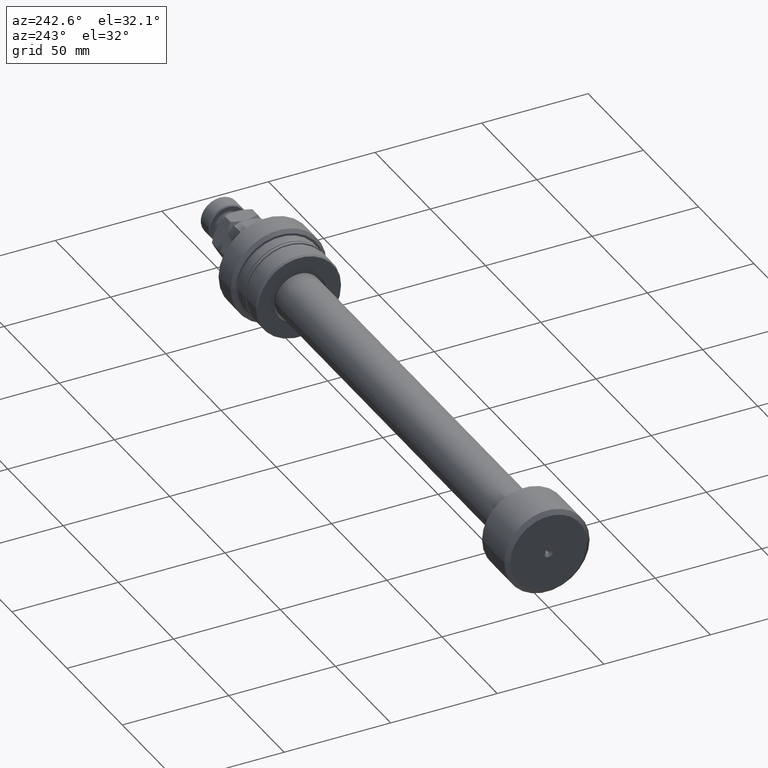
[diagram: clean part render]
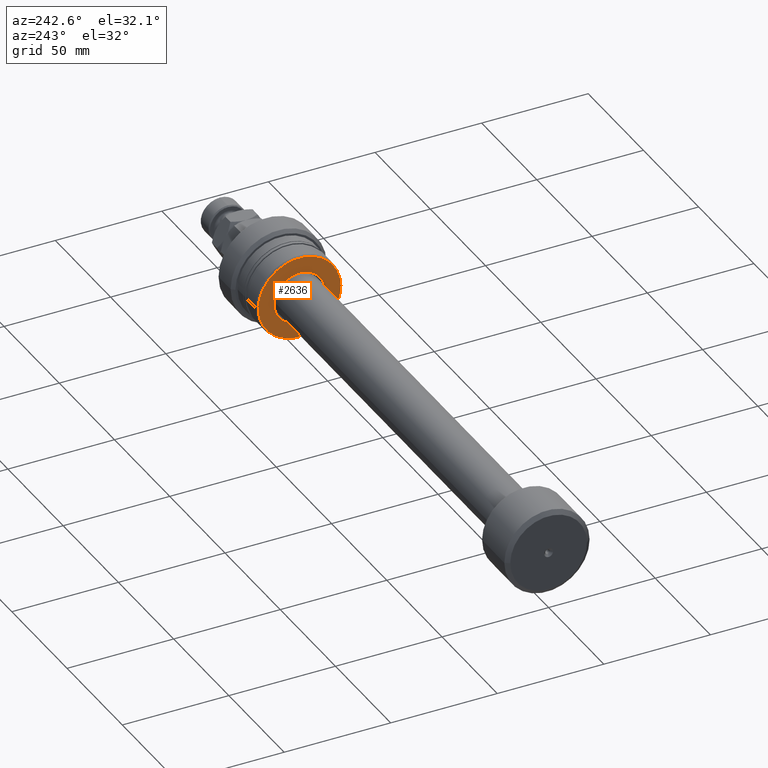
[diagram: same view with one face highlighted and labeled with its STEP entity id]
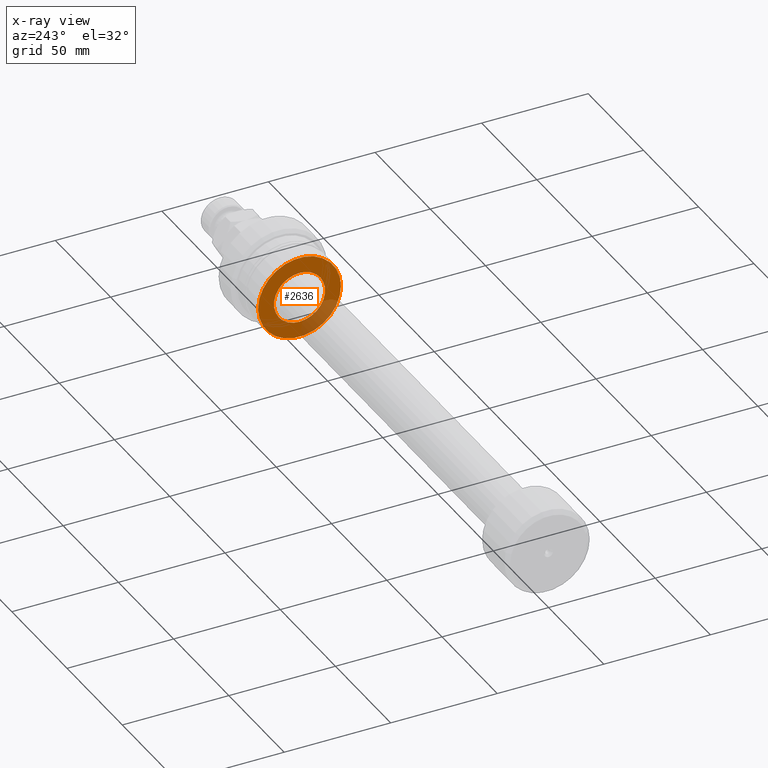
[diagram: x-ray of the same camera — body ghosted, the highlighted face saturated]
A machine part, auxiliary view. The second image highlights one B-rep face of the part: STEP entity #2636.
The next image is the same camera in x-ray: the body ghosted, the highlighted face saturated — about 18% of this face is hidden behind the body in this view.
In plain terms, the highlighted planar face has unit normal (1, 0, 0).
Its self-contained STEP definition (entity closure, byte-faithful):
#52 = ORIENTED_EDGE ( 'NONE', *, *, #2609, .F. ) ;
#162 = FACE_BOUND ( 'NONE', #677, .T. ) ;
#442 = AXIS2_PLACEMENT_3D ( 'NONE', #663, #646, #1986 ) ;
#531 = EDGE_LOOP ( 'NONE', ( #52, #917 ) ) ;
#646 = DIRECTION ( 'NONE',  ( 1.000000000000000000, 3.039592211588219332E-15, -0.000000000000000000 ) ) ;
#663 = CARTESIAN_POINT ( 'NONE',  ( -31.50000000000002842, 0.000000000000000000, 0.000000000000000000 ) ) ;
#677 = EDGE_LOOP ( 'NONE', ( #1540, #4001 ) ) ;
#702 = AXIS2_PLACEMENT_3D ( 'NONE', #2912, #1994, #3272 ) ;
#786 = FACE_OUTER_BOUND ( 'NONE', #531, .T. ) ;
#819 = EDGE_CURVE ( 'NONE', #3399, #4081, #1765, .T. ) ;
#886 = CARTESIAN_POINT ( 'NONE',  ( -31.50000000000011724, 19.42264973081046620, 0.000000000000000000 ) ) ;
#917 = ORIENTED_EDGE ( 'NONE', *, *, #3283, .F. ) ;
#1103 = CIRCLE ( 'NONE', #442, 12.00000000000004974 ) ;
#1220 = CARTESIAN_POINT ( 'NONE',  ( -31.50000000000002842, 1.469576158976825525E-15, -12.00000000000001421 ) ) ;
#1303 = AXIS2_PLACEMENT_3D ( 'NONE', #2085, #2352, #2714 ) ;
#1346 = CARTESIAN_POINT ( 'NONE',  ( -31.49999999999999289, -19.42264973081047330, 2.413941090337215294E-15 ) ) ;
#1540 = ORIENTED_EDGE ( 'NONE', *, *, #819, .T. ) ;
#1569 = VERTEX_POINT ( 'NONE', #886 ) ;
#1617 = CARTESIAN_POINT ( 'NONE',  ( -31.50000000000002842, 0.000000000000000000, 0.000000000000000000 ) ) ;
#1663 = DIRECTION ( 'NONE',  ( -2.891205793294666395E-15, 1.000000000000000000, 0.000000000000000000 ) ) ;
#1765 = CIRCLE ( 'NONE', #2027, 12.00000000000004974 ) ;
#1880 = DIRECTION ( 'NONE',  ( -3.215320566487873166E-15, 1.000000000000000000, 0.000000000000000000 ) ) ;
#1900 = CARTESIAN_POINT ( 'NONE',  ( -31.50000000000005684, -3.708233295962832451E-15, 0.000000000000000000 ) ) ;
#1986 = DIRECTION ( 'NONE',  ( -2.891205793294666395E-15, 1.000000000000000000, 0.000000000000000000 ) ) ;
#1994 = DIRECTION ( 'NONE',  ( 1.000000000000000000, 3.039592211588219332E-15, -0.000000000000000000 ) ) ;
#2007 = VERTEX_POINT ( 'NONE', #1346 ) ;
#2027 = AXIS2_PLACEMENT_3D ( 'NONE', #1617, #2299, #1663 ) ;
#2085 = CARTESIAN_POINT ( 'NONE',  ( -31.50000000000002842, -3.708233295962742521E-15, 0.000000000000000000 ) ) ;
#2155 = CIRCLE ( 'NONE', #3935, 19.42264973081046975 ) ;
#2219 = DIRECTION ( 'NONE',  ( 1.000000000000000000, 3.039592211588219332E-15, -0.000000000000000000 ) ) ;
#2299 = DIRECTION ( 'NONE',  ( 1.000000000000000000, 3.039592211588219332E-15, -0.000000000000000000 ) ) ;
#2352 = DIRECTION ( 'NONE',  ( 1.000000000000000000, 3.039592211588219332E-15, -0.000000000000000000 ) ) ;
#2566 = CARTESIAN_POINT ( 'NONE',  ( -31.50000000000002842, 0.000000000000000000, 12.00000000000001421 ) ) ;
#2609 = EDGE_CURVE ( 'NONE', #1569, #2007, #3218, .T. ) ;
#2636 = ADVANCED_FACE ( 'NONE', ( #162, #786 ), #3077, .F. ) ;
#2714 = DIRECTION ( 'NONE',  ( -3.039592211588219332E-15, 1.000000000000000000, 0.000000000000000000 ) ) ;
#2912 = CARTESIAN_POINT ( 'NONE',  ( -31.50000000000005684, -3.708233295962832451E-15, 0.000000000000000000 ) ) ;
#3077 = PLANE ( 'NONE',  #1303 ) ;
#3218 = CIRCLE ( 'NONE', #702, 19.42264973081046975 ) ;
#3272 = DIRECTION ( 'NONE',  ( -3.215320566487873166E-15, 1.000000000000000000, 0.000000000000000000 ) ) ;
#3283 = EDGE_CURVE ( 'NONE', #2007, #1569, #2155, .T. ) ;
#3392 = EDGE_CURVE ( 'NONE', #4081, #3399, #1103, .T. ) ;
#3399 = VERTEX_POINT ( 'NONE', #2566 ) ;
#3935 = AXIS2_PLACEMENT_3D ( 'NONE', #1900, #2219, #1880 ) ;
#4001 = ORIENTED_EDGE ( 'NONE', *, *, #3392, .T. ) ;
#4081 = VERTEX_POINT ( 'NONE', #1220 ) ;